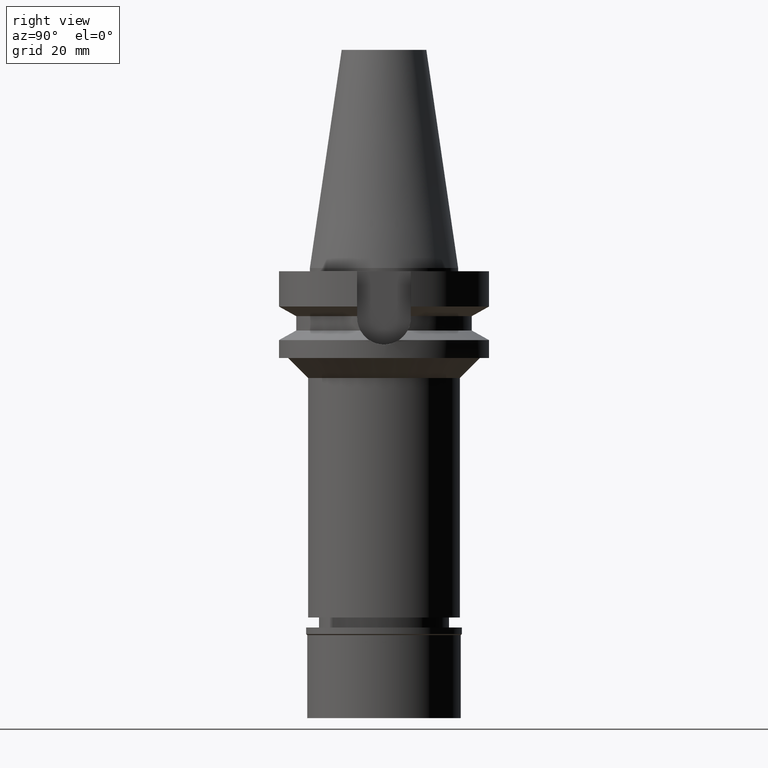
[diagram: clean part render]
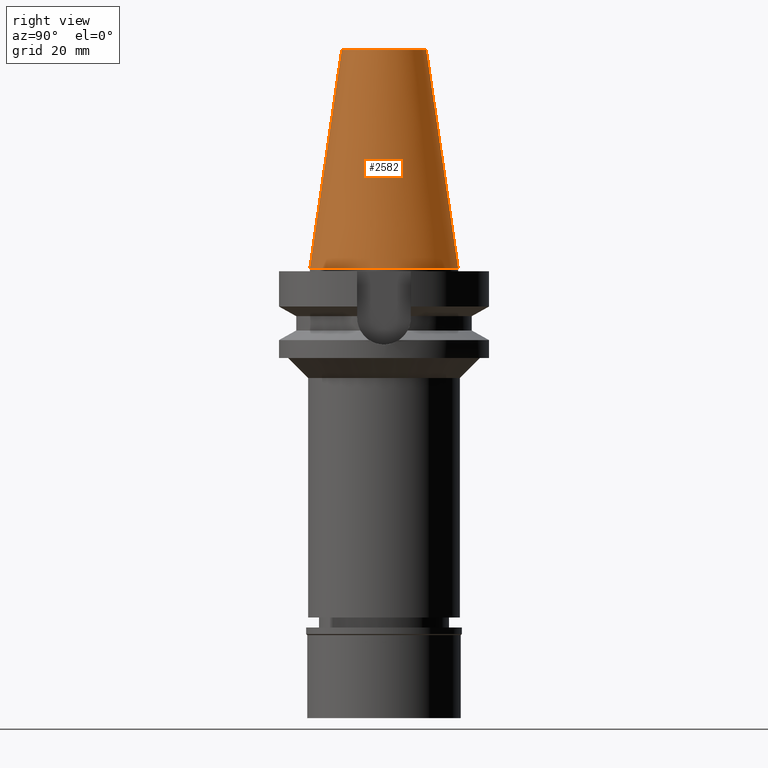
[diagram: same view with one face highlighted and labeled with its STEP entity id]
A machine part, right view. The second image highlights one B-rep face of the part: STEP entity #2582.
In plain terms, the highlighted conical surface has half-angle 8.297 deg.
Its self-contained STEP definition (entity closure, byte-faithful):
#76 = VERTEX_POINT ( 'NONE', #2597 ) ;
#181 = FACE_OUTER_BOUND ( 'NONE', #2936, .T. ) ;
#191 = CARTESIAN_POINT ( 'NONE',  ( 0.0000000000000000000, -12.68766899429999917, 65.40000000000000568 ) ) ;
#251 = AXIS2_PLACEMENT_3D ( 'NONE', #293, #725, #506 ) ;
#278 = CARTESIAN_POINT ( 'NONE',  ( 0.0000000000000000000, 12.68766899429999917, 65.40000000000000568 ) ) ;
#293 = CARTESIAN_POINT ( 'NONE',  ( 0.0000000000000000000, 0.0000000000000000000, 0.0000000000000000000 ) ) ;
#310 = CONICAL_SURFACE ( 'NONE', #2391, 17.45633449714999941, 0.1448099680379422438 ) ;
#506 = DIRECTION ( 'NONE',  ( 0.0000000000000000000, 1.000000000000000000, 0.0000000000000000000 ) ) ;
#547 = CARTESIAN_POINT ( 'NONE',  ( 0.0000000000000000000, 12.68766899429999917, 65.40000000000000568 ) ) ;
#565 = VERTEX_POINT ( 'NONE', #191 ) ;
#695 = CIRCLE ( 'NONE', #251, 22.22500000000000142 ) ;
#697 = DIRECTION ( 'NONE',  ( 0.0000000000000000000, 1.000000000000000000, 0.0000000000000000000 ) ) ;
#725 = DIRECTION ( 'NONE',  ( 0.0000000000000000000, 0.0000000000000000000, -1.000000000000000000 ) ) ;
#768 = VECTOR ( 'NONE', #2950, 1000.000000000000114 ) ;
#813 = AXIS2_PLACEMENT_3D ( 'NONE', #2117, #3103, #697 ) ;
#954 = CIRCLE ( 'NONE', #813, 12.68766899429999917 ) ;
#1032 = CARTESIAN_POINT ( 'NONE',  ( 0.0000000000000000000, 22.22500000000000142, 1.421085471519999843E-14 ) ) ;
#1136 = DIRECTION ( 'NONE',  ( 0.0000000000000000000, -1.000000000000000000, 0.0000000000000000000 ) ) ;
#1219 = LINE ( 'NONE', #1415, #2545 ) ;
#1415 = CARTESIAN_POINT ( 'NONE',  ( 0.0000000000000000000, -12.68766899429999917, 65.40000000000000568 ) ) ;
#1741 = EDGE_CURVE ( 'NONE', #2362, #3088, #1783, .T. ) ;
#1783 = LINE ( 'NONE', #547, #768 ) ;
#2059 = ORIENTED_EDGE ( 'NONE', *, *, #2324, .T. ) ;
#2117 = CARTESIAN_POINT ( 'NONE',  ( 0.0000000000000000000, 0.0000000000000000000, 65.40000000000000568 ) ) ;
#2297 = EDGE_CURVE ( 'NONE', #3088, #76, #695, .T. ) ;
#2324 = EDGE_CURVE ( 'NONE', #565, #76, #1219, .T. ) ;
#2362 = VERTEX_POINT ( 'NONE', #278 ) ;
#2391 = AXIS2_PLACEMENT_3D ( 'NONE', #2547, #2536, #1136 ) ;
#2521 = ORIENTED_EDGE ( 'NONE', *, *, #2297, .F. ) ;
#2536 = DIRECTION ( 'NONE',  ( 0.0000000000000000000, 0.0000000000000000000, -1.000000000000000000 ) ) ;
#2545 = VECTOR ( 'NONE', #2896, 1000.000000000000114 ) ;
#2547 = CARTESIAN_POINT ( 'NONE',  ( 0.0000000000000000000, 0.0000000000000000000, 32.70000000000000284 ) ) ;
#2582 = ADVANCED_FACE ( 'NONE', ( #181 ), #310, .T. ) ;
#2597 = CARTESIAN_POINT ( 'NONE',  ( 0.0000000000000000000, -22.22500000000000142, 0.0000000000000000000 ) ) ;
#2801 = ORIENTED_EDGE ( 'NONE', *, *, #1741, .F. ) ;
#2896 = DIRECTION ( 'NONE',  ( 0.0000000000000000000, -0.1443043893539925626, -0.9895333461855498891 ) ) ;
#2936 = EDGE_LOOP ( 'NONE', ( #2946, #2059, #2521, #2801 ) ) ;
#2946 = ORIENTED_EDGE ( 'NONE', *, *, #2965, .T. ) ;
#2950 = DIRECTION ( 'NONE',  ( 0.0000000000000000000, 0.1443043893539925626, -0.9895333461855498891 ) ) ;
#2965 = EDGE_CURVE ( 'NONE', #2362, #565, #954, .T. ) ;
#3088 = VERTEX_POINT ( 'NONE', #1032 ) ;
#3103 = DIRECTION ( 'NONE',  ( 0.0000000000000000000, 0.0000000000000000000, -1.000000000000000000 ) ) ;